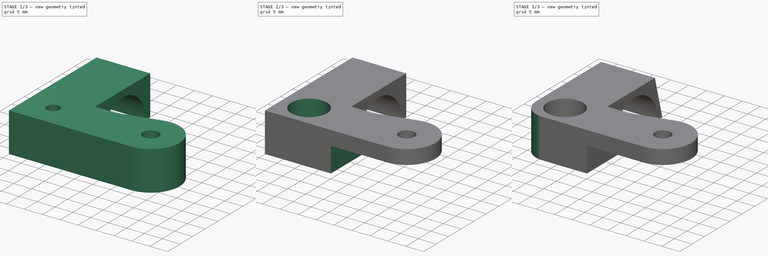
[diagram: build sequence overview — one tinted view per stage of 3, left to right]
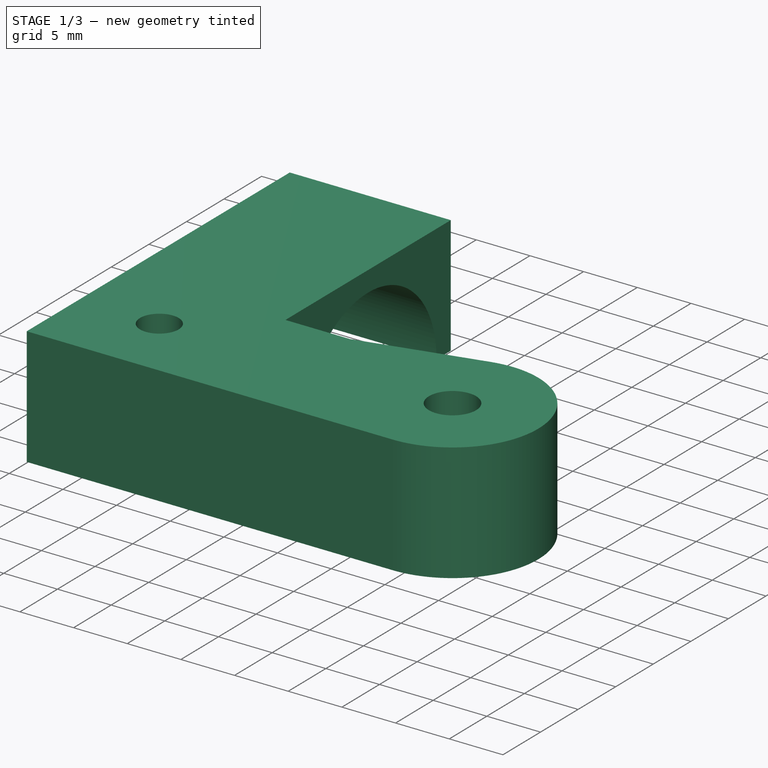
[diagram: stage 1 of 3 — iso view after this stage's code; geometry added in this stage tinted green]
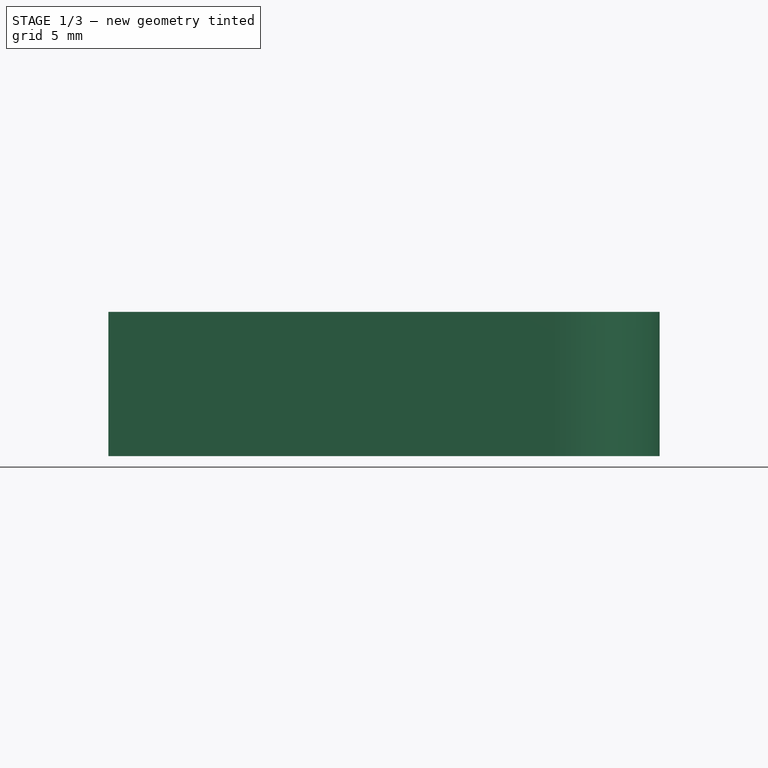
[diagram: stage 1 of 3 — front view after this stage's code; geometry added in this stage tinted green]
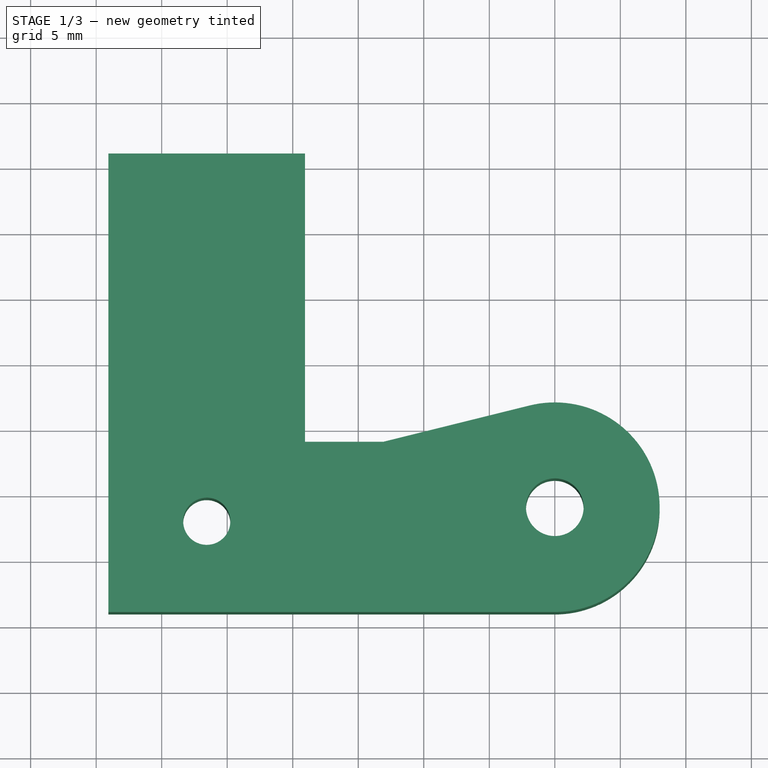
[diagram: stage 1 of 3 — top view after this stage's code; geometry added in this stage tinted green]
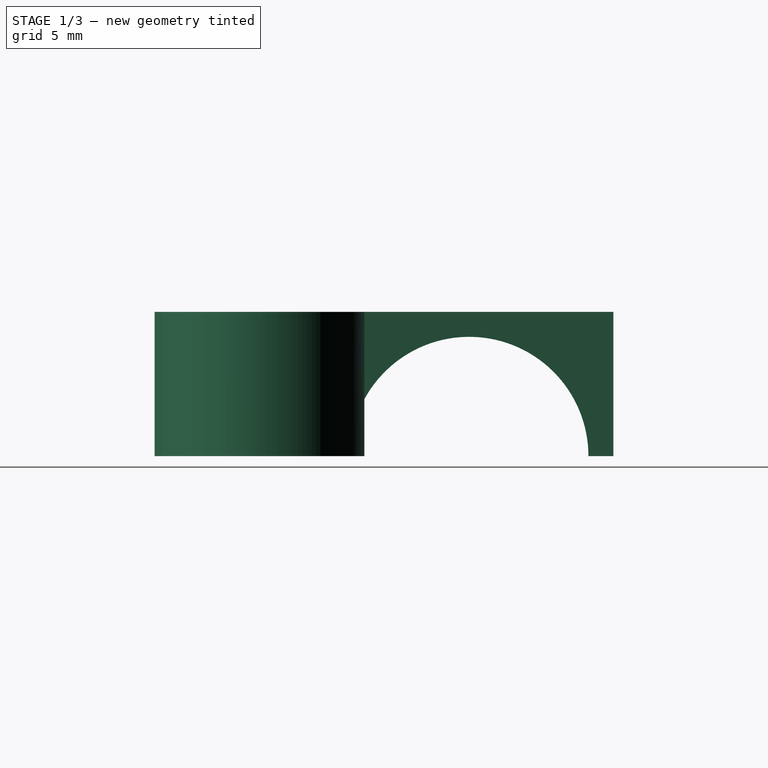
[diagram: stage 1 of 3 — right view after this stage's code; geometry added in this stage tinted green]
FCSTD DOCUMENT  (FreeCAD 0.16R6707 (Git))
Label: spange
License: All rights reserved
LicenseURL: http://en.wikipedia.org/wiki/All_rights_reserved
objects: Sketcher::SketchObject×4, PartDesign::Pocket×3, PartDesign::Pad×1, PartDesign::Fillet×1, PartDesign::Draft×1
note: 14 computed .brp shape members not serialized (recipe doc carries the construction recipe); baked Part::Feature solids carry a one-line shape summary decoded from their .brp

FEATURE [Sketcher::SketchObject] Sketch
  sketch-geometry (10):
    g0: LineSegment StartX=-14.0679 StartY=11 StartZ=0 EndX=0.932124 EndY=11 EndZ=0
    g1: LineSegment StartX=0.932124 StartY=11 StartZ=0 EndX=0.932124 EndY=-11 EndZ=0
    g2: LineSegment StartX=20 StartY=-24 StartZ=0 EndX=-14.0679 EndY=-24 EndZ=0
    g3: LineSegment StartX=-14.0679 StartY=-24 StartZ=0 EndX=-14.0679 EndY=11 EndZ=0
    g4: Circle CenterX=20 CenterY=-16 CenterZ=0 NormalX=0 NormalY=0 NormalZ=1 Radius=2.2
    g5: ArcOfCircle CenterX=20 CenterY=-16 CenterZ=0 NormalX=0 NormalY=0 NormalZ=1 Radius=8 StartAngle=4.71238 EndAngle=8.09721
    g6: LineSegment StartX=0.932124 StartY=-11 StartZ=0 EndX=6.93212 EndY=-11 EndZ=0
    g7: LineSegment StartX=6.93212 StartY=-11 StartZ=0 EndX=18.0733 EndY=-8.23548 EndZ=0
    g8: LineSegment [constr] StartX=5 StartY=18.2637 StartZ=0 EndX=5 EndY=-35.7018 EndZ=0
    g9: Circle CenterX=-6.56058 CenterY=-17.0713 CenterZ=0 NormalX=0 NormalY=0 NormalZ=1 Radius=1.8
  constraints (26):
    c: Horizontal(g0)
    c: Coincident(g0,g1)
    c: Vertical(g1)
    c: Horizontal(g2)
    c: Coincident(g2,g3)
    c: Coincident(g3,g0)
    c: Vertical(g3)
    c: Symmetric(g1,g0,g-1)
    c: DistanceY(g4,g-1) = 16
    c: DistanceX(g-1,g4) = 20
    c: Coincident(g5,g4)
    c: Coincident(g5,g2)
    c: Tangent(g2,g5)
    c: Radius(g4) = 2.2
    c: DistanceY(g1,g1) = 22
    c: Coincident(g1,g6)
    c: Horizontal(g6)
    c: Coincident(g7,g6)
    c: Coincident(g7,g5)
    c: Tangent(g7,g5)
    c: Radius(g5) = 8
    c: DistanceX(g6,g6) = 6
    c: DistanceX(g0,g0) = 15
    c: Vertical(g8)
    c: DistanceX(g8,g4) = 15
    c: Radius(g9) = 1.8
FEATURE [PartDesign::Pad] Pad
  Length = 11
  Length2 = 100
  Sketch = -> Sketch
  Type = 0
FEATURE [Sketcher::SketchObject] Sketch001
  Placement = pos=(-14.0679,0,0) rot=(0.57735,-0.57735,-0.57735;2.0944rad)
  Support = -> Pad [Face2]
  sketch-geometry (1):
    g0: Circle CenterX=0 CenterY=0 CenterZ=0 NormalX=0 NormalY=0 NormalZ=1 Radius=9.1
  constraints (3):
    c: PointOnObject(g0,g-2)
    c: Radius(g0) = 9.1
    c: Coincident(g0,g-1)
FEATURE [PartDesign::Pocket] Pocket
  Length = 5
  Sketch = -> Sketch001
  Type = 2
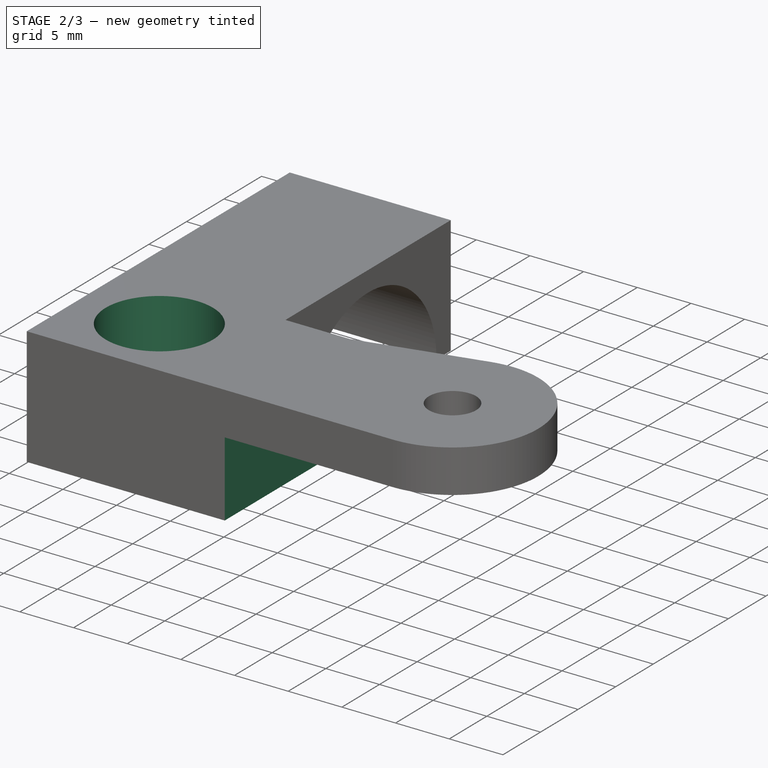
[diagram: stage 2 of 3 — iso view after this stage's code; geometry added in this stage tinted green]
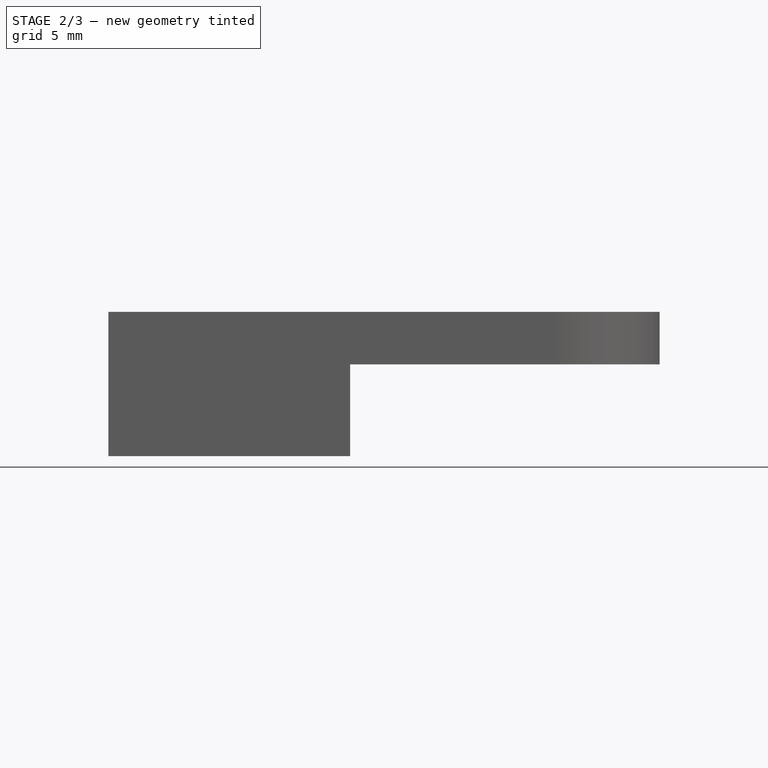
[diagram: stage 2 of 3 — front view after this stage's code; geometry added in this stage tinted green]
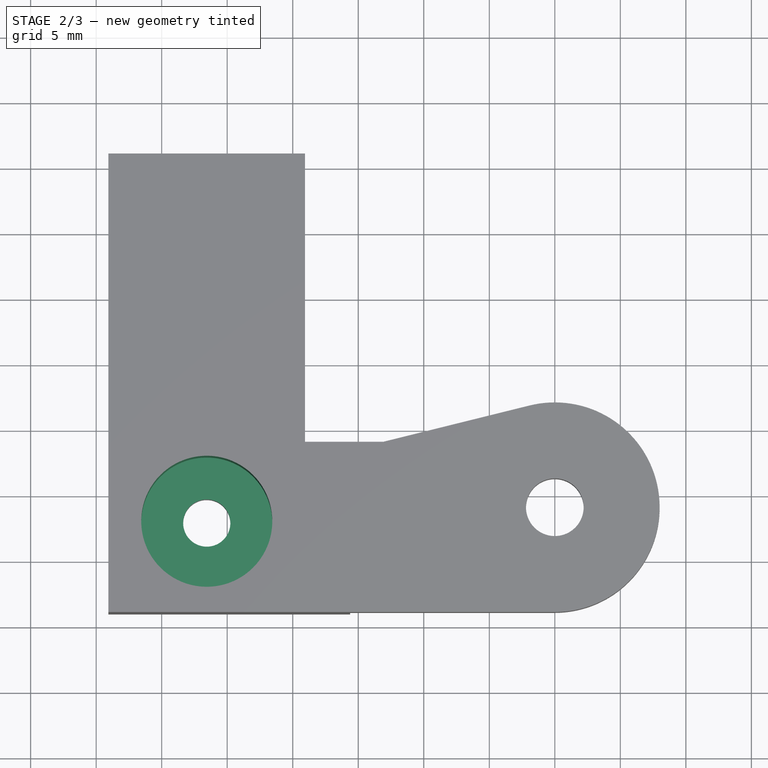
[diagram: stage 2 of 3 — top view after this stage's code; geometry added in this stage tinted green]
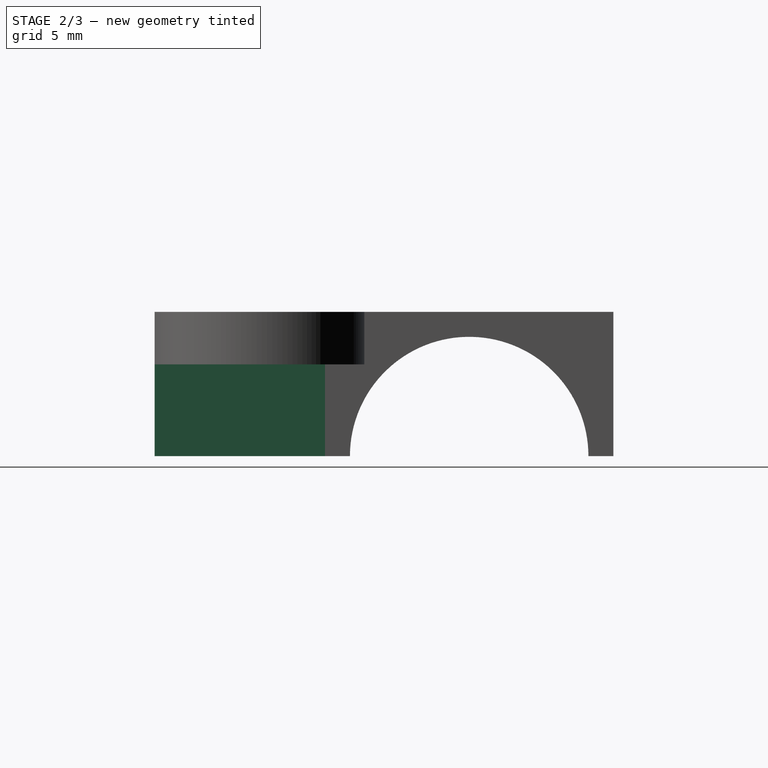
[diagram: stage 2 of 3 — right view after this stage's code; geometry added in this stage tinted green]
FEATURE [Sketcher::SketchObject] Sketch002
  Placement = pos=(0,0,0) rot=(1,0,0;3.14159rad)
  Support = -> Pocket [Face4]
  sketch-geometry (4):
    g0: LineSegment StartX=4.38342 StartY=29.5538 StartZ=0 EndX=32.277 EndY=29.5538 EndZ=0
    g1: LineSegment StartX=32.277 StartY=29.5538 StartZ=0 EndX=32.277 EndY=5.41732 EndZ=0
    g2: LineSegment StartX=32.277 StartY=5.41732 StartZ=0 EndX=4.38342 EndY=5.41732 EndZ=0
    g3: LineSegment StartX=4.38342 StartY=5.41732 StartZ=0 EndX=4.38342 EndY=29.5538 EndZ=0
  constraints (8):
    c: Coincident(g0,g1)
    c: Coincident(g1,g2)
    c: Coincident(g2,g3)
    c: Coincident(g3,g0)
    c: Horizontal(g0)
    c: Horizontal(g2)
    c: Vertical(g1)
    c: Vertical(g3)
FEATURE [PartDesign::Pocket] Pocket001
  Length = 7
  Sketch = -> Sketch002
  Type = 0
FEATURE [Sketcher::SketchObject] Sketch003
  ExternalGeometry = -> [Pocket001]
  Placement = pos=(0,0,11) rot=(0,0,1;0rad)
  Support = -> Pocket001 [Face6]
  sketch-geometry (1):
    g0: Circle CenterX=-6.56058 CenterY=-17.0713 CenterZ=0 NormalX=0 NormalY=0 NormalZ=1 Radius=5
  constraints (2):
    c: Radius(g0) = 5
    c: Coincident(g0,g-3)
FEATURE [PartDesign::Pocket] Pocket002
  Length = 8
  Sketch = -> Sketch003
  Type = 0
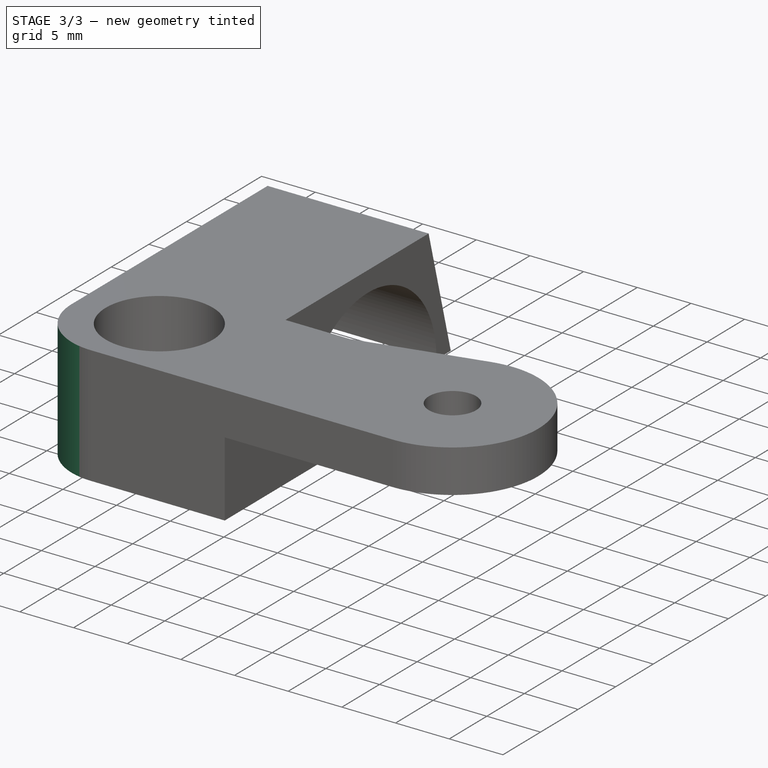
[diagram: stage 3 of 3 — iso view after this stage's code; geometry added in this stage tinted green]
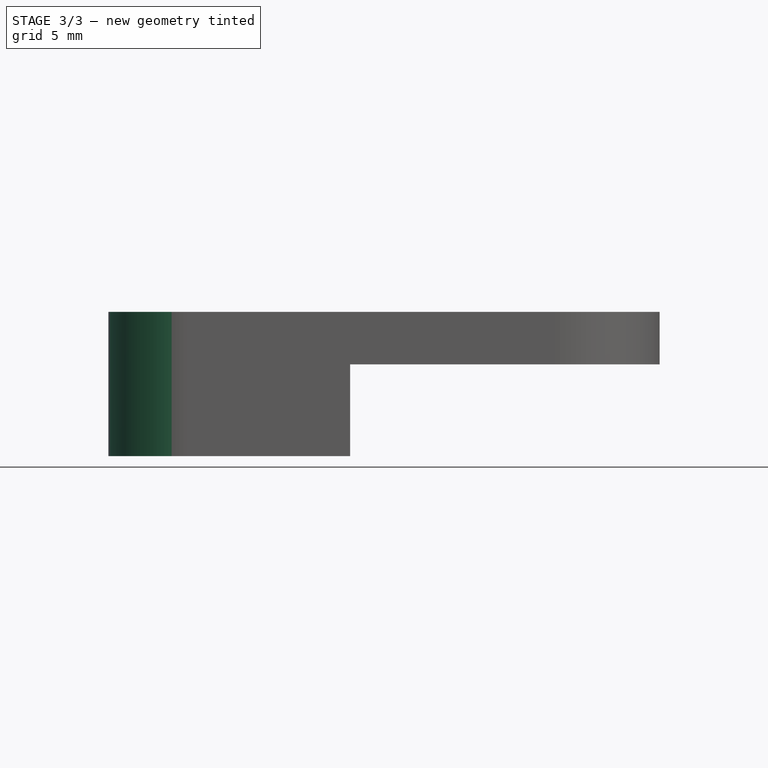
[diagram: stage 3 of 3 — front view after this stage's code; geometry added in this stage tinted green]
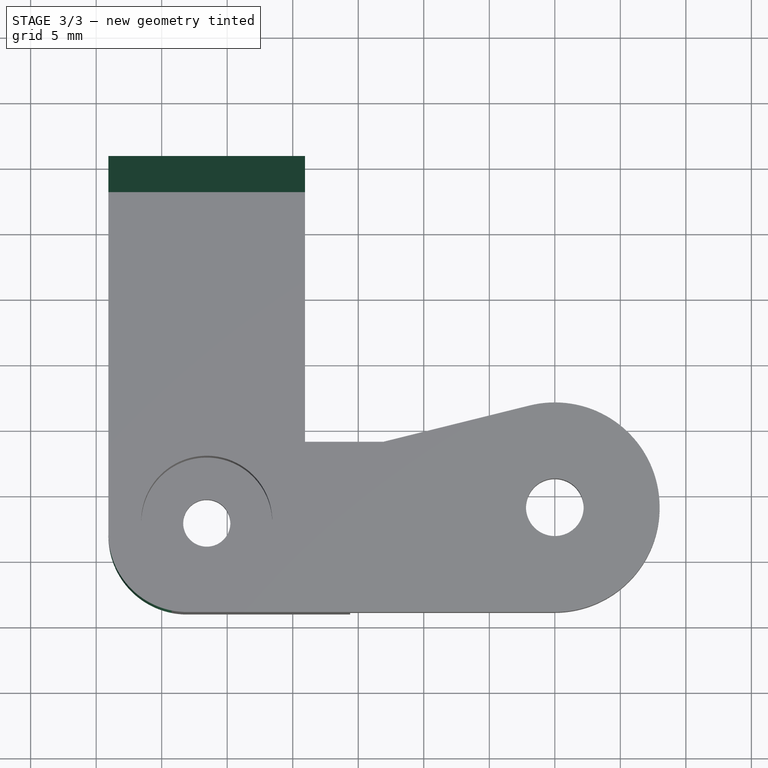
[diagram: stage 3 of 3 — top view after this stage's code; geometry added in this stage tinted green]
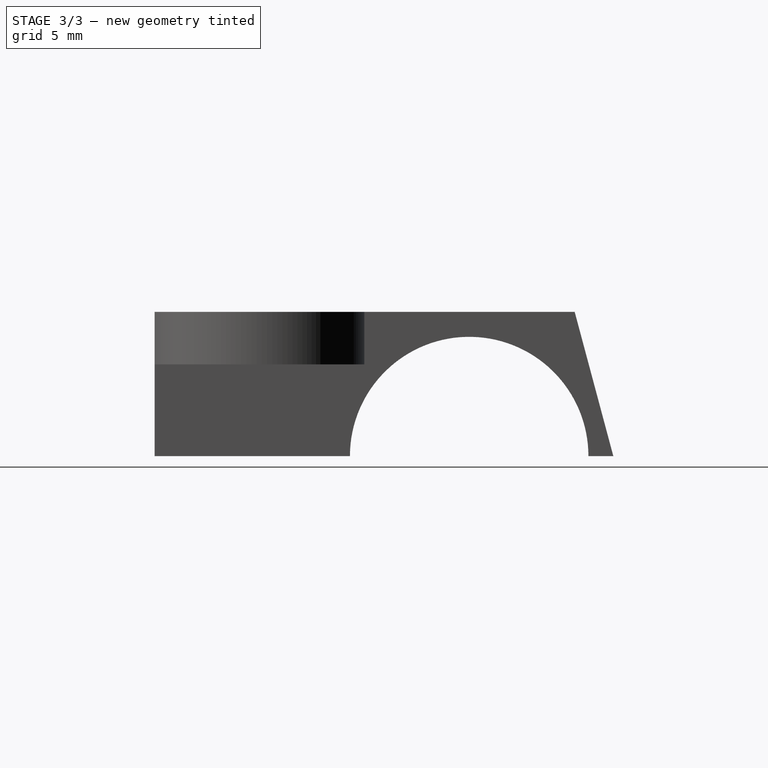
[diagram: stage 3 of 3 — right view after this stage's code; geometry added in this stage tinted green]
FEATURE [PartDesign::Fillet] Fillet
  Base = -> Pocket002 [Edge4]
  Radius = 6
FEATURE [PartDesign::Draft] Draft
  Angle = 15
  Base = -> Fillet [Face14]
  NeutralPlane = -> Fillet [Face17]
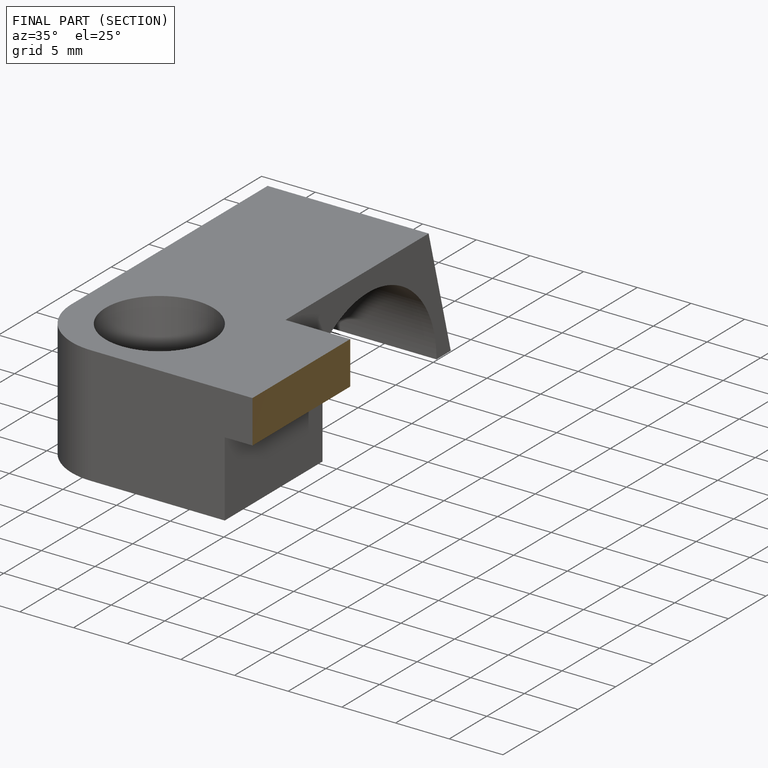
[diagram: finished part — half-section view (interior)]
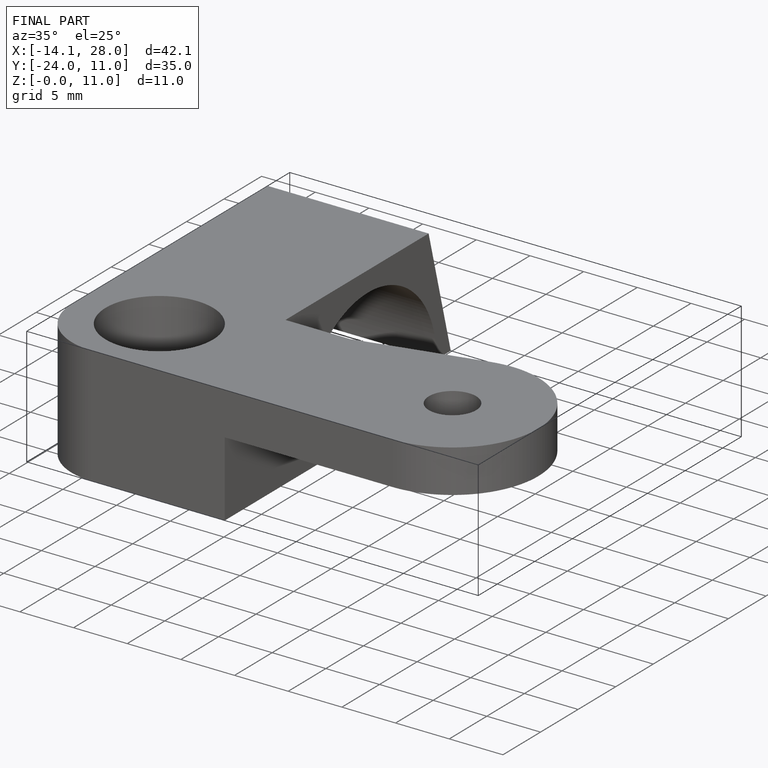
[diagram: finished part — iso view with bounding-box wireframe]
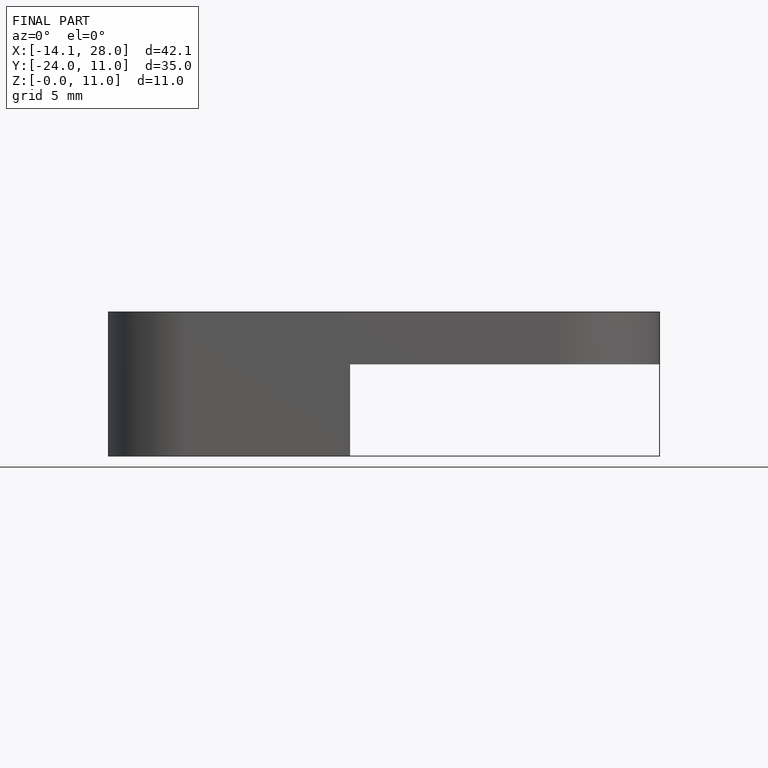
[diagram: finished part — front view with bounding-box wireframe]
